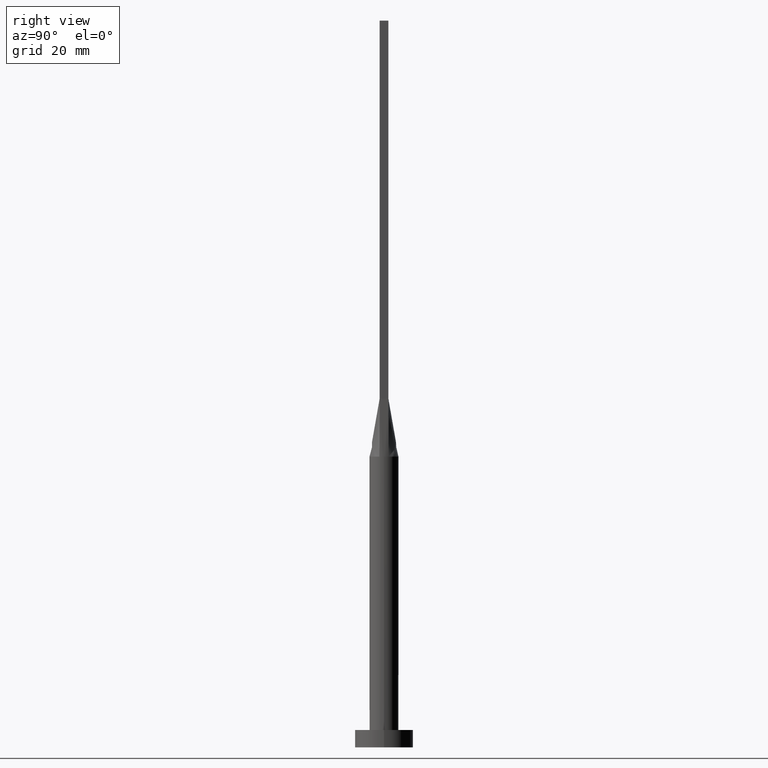
[diagram: clean part render]
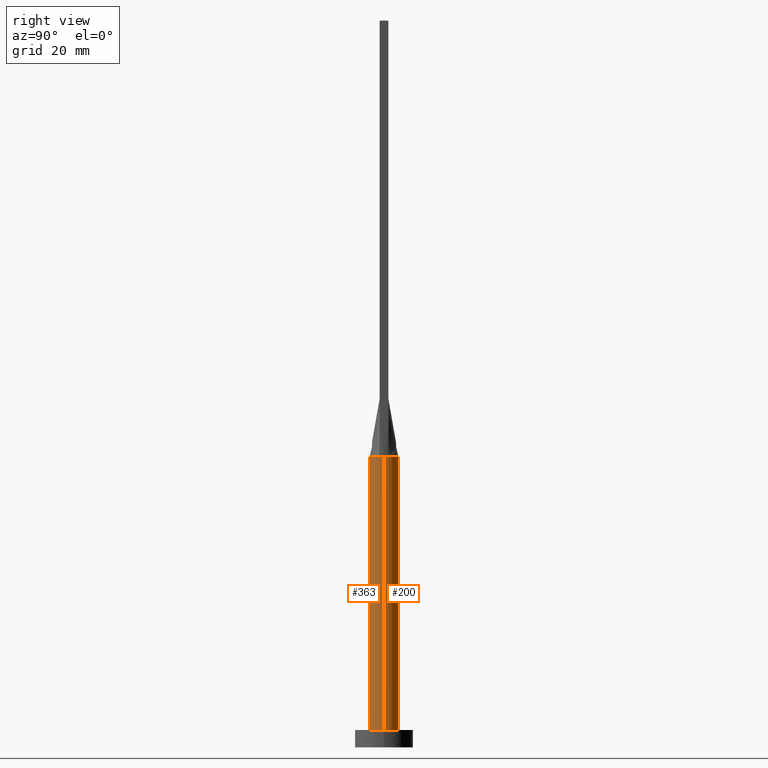
[diagram: same view with one multi-face feature highlighted, each face labeled with its STEP entity id]
A machine part, right view. The highlighted faces form ONE feature: a constant-radius fillet chain: 2 tangent blend faces with common blend radius 2.5 mm. The faces share edges in the B-rep.
Their STEP definitions:
[1] entity #363 (Cylinder):
#29 = CARTESIAN_POINT ( 'NONE',  ( 2.499999999999999556, 3.110810548879990207E-17, 50.00000000000000000 ) ) ;
#45 = ORIENTED_EDGE ( 'NONE', *, *, #485, .F. ) ;
#77 = DIRECTION ( 'NONE',  ( 1.000000000000000000, 0.000000000000000000, 0.000000000000000000 ) ) ;
#80 = EDGE_CURVE ( 'NONE', #159, #578, #181, .T. ) ;
#90 = EDGE_CURVE ( 'NONE', #519, #320, #391, .T. ) ;
#98 = ORIENTED_EDGE ( 'NONE', *, *, #80, .F. ) ;
#105 = ORIENTED_EDGE ( 'NONE', *, *, #90, .T. ) ;
#106 = CIRCLE ( 'NONE', #189, 2.500000000000000000 ) ;
#113 = DIRECTION ( 'NONE',  ( -0.000000000000000000, -0.000000000000000000, -1.000000000000000000 ) ) ;
#150 = DIRECTION ( 'NONE',  ( 0.000000000000000000, 0.000000000000000000, 1.000000000000000000 ) ) ;
#157 = DIRECTION ( 'NONE',  ( -0.000000000000000000, -0.000000000000000000, -1.000000000000000000 ) ) ;
#159 = VERTEX_POINT ( 'NONE', #495 ) ;
#181 = CIRCLE ( 'NONE', #560, 2.500000000000000000 ) ;
#189 = AXIS2_PLACEMENT_3D ( 'NONE', #484, #330, #77 ) ;
#203 = CARTESIAN_POINT ( 'NONE',  ( -2.500000000000000444, -1.570839010700814298E-16, 50.00000000000000000 ) ) ;
#212 = CARTESIAN_POINT ( 'NONE',  ( -2.371775648085652222, -0.7905922034696525325, 50.00000000000000000 ) ) ;
#219 = ORIENTED_EDGE ( 'NONE', *, *, #447, .F. ) ;
#232 = CARTESIAN_POINT ( 'NONE',  ( -2.500000000000000000, 0.000000000000000000, 3.000000000000000000 ) ) ;
#235 = CARTESIAN_POINT ( 'NONE',  ( 0.000000000000000000, 0.000000000000000000, 50.00000000000000000 ) ) ;
#241 = DIRECTION ( 'NONE',  ( -1.000000000000000000, 0.000000000000000000, 0.000000000000000000 ) ) ;
#244 = CYLINDRICAL_SURFACE ( 'NONE', #312, 2.500000000000000000 ) ;
#246 = LINE ( 'NONE', #581, #575 ) ;
#267 = AXIS2_PLACEMENT_3D ( 'NONE', #386, #500, #390 ) ;
#274 = CARTESIAN_POINT ( 'NONE',  ( -2.500000000000000000, 0.000000000000000000, 50.00000000000000000 ) ) ;
#283 = CIRCLE ( 'NONE', #267, 2.500000000000000000 ) ;
#284 = CARTESIAN_POINT ( 'NONE',  ( 2.500000000000000000, 3.061616997868383141E-16, 3.000000000000000000 ) ) ;
#309 = EDGE_CURVE ( 'NONE', #320, #513, #345, .T. ) ;
#312 = AXIS2_PLACEMENT_3D ( 'NONE', #530, #113, #241 ) ;
#318 = DIRECTION ( 'NONE',  ( 1.000000000000000000, 0.000000000000000000, 0.000000000000000000 ) ) ;
#320 = VERTEX_POINT ( 'NONE', #232 ) ;
#328 = DIRECTION ( 'NONE',  ( 0.000000000000000000, 0.000000000000000000, 1.000000000000000000 ) ) ;
#330 = DIRECTION ( 'NONE',  ( 0.000000000000000000, 0.000000000000000000, 1.000000000000000000 ) ) ;
#345 = CIRCLE ( 'NONE', #498, 2.500000000000000000 ) ;
#363 = ADVANCED_FACE ( 'NONE', ( #389 ), #244, .T. ) ;
#373 = EDGE_CURVE ( 'NONE', #519, #472, #106, .T. ) ;
#386 = CARTESIAN_POINT ( 'NONE',  ( 0.000000000000000000, 0.000000000000000000, 50.00000000000000000 ) ) ;
#389 = FACE_OUTER_BOUND ( 'NONE', #467, .T. ) ;
#390 = DIRECTION ( 'NONE',  ( 1.000000000000000000, 0.000000000000000000, 0.000000000000000000 ) ) ;
#391 = LINE ( 'NONE', #274, #507 ) ;
#431 = DIRECTION ( 'NONE',  ( -0.000000000000000000, -0.000000000000000000, -1.000000000000000000 ) ) ;
#447 = EDGE_CURVE ( 'NONE', #472, #159, #283, .T. ) ;
#467 = EDGE_LOOP ( 'NONE', ( #45, #98, #219, #579, #105, #542 ) ) ;
#472 = VERTEX_POINT ( 'NONE', #212 ) ;
#484 = CARTESIAN_POINT ( 'NONE',  ( 0.000000000000000000, 0.000000000000000000, 50.00000000000000000 ) ) ;
#485 = EDGE_CURVE ( 'NONE', #578, #513, #246, .T. ) ;
#490 = DIRECTION ( 'NONE',  ( 1.000000000000000000, -4.440892098500626162E-15, 0.000000000000000000 ) ) ;
#495 = CARTESIAN_POINT ( 'NONE',  ( 2.371798206859841329, -0.7905998626979697796, 50.00000000000000000 ) ) ;
#498 = AXIS2_PLACEMENT_3D ( 'NONE', #561, #150, #318 ) ;
#500 = DIRECTION ( 'NONE',  ( 0.000000000000000000, 0.000000000000000000, 1.000000000000000000 ) ) ;
#507 = VECTOR ( 'NONE', #431, 1000.000000000000000 ) ;
#513 = VERTEX_POINT ( 'NONE', #284 ) ;
#519 = VERTEX_POINT ( 'NONE', #203 ) ;
#530 = CARTESIAN_POINT ( 'NONE',  ( 0.000000000000000000, 0.000000000000000000, 50.00000000000000000 ) ) ;
#542 = ORIENTED_EDGE ( 'NONE', *, *, #309, .T. ) ;
#560 = AXIS2_PLACEMENT_3D ( 'NONE', #235, #328, #490 ) ;
#561 = CARTESIAN_POINT ( 'NONE',  ( 0.000000000000000000, 0.000000000000000000, 3.000000000000000000 ) ) ;
#575 = VECTOR ( 'NONE', #157, 1000.000000000000000 ) ;
#578 = VERTEX_POINT ( 'NONE', #29 ) ;
#579 = ORIENTED_EDGE ( 'NONE', *, *, #373, .F. ) ;
#581 = CARTESIAN_POINT ( 'NONE',  ( 2.500000000000000000, 3.061616997868383141E-16, 50.00000000000000000 ) ) ;
[2] entity #200 (Cylinder):
#17 = CARTESIAN_POINT ( 'NONE',  ( 0.3003163416900527238, 2.499999999999999556, 50.00000000000000711 ) ) ;
#18 = CARTESIAN_POINT ( 'NONE',  ( -2.218933079238281536, 1.174882007251999871, 50.00000000000000711 ) ) ;
#29 = CARTESIAN_POINT ( 'NONE',  ( 2.499999999999999556, 3.110810548879990207E-17, 50.00000000000000000 ) ) ;
#35 = ORIENTED_EDGE ( 'NONE', *, *, #485, .T. ) ;
#49 = VERTEX_POINT ( 'NONE', #143 ) ;
#56 = CARTESIAN_POINT ( 'NONE',  ( 1.145194483530141749, 2.241235424885160921, 50.00000000000000000 ) ) ;
#61 = CARTESIAN_POINT ( 'NONE',  ( -2.309208245126284975, 0.9780694150420951027, 50.00000000000000711 ) ) ;
#68 = B_SPLINE_CURVE_WITH_KNOTS ( 'NONE', 3,
 ( #279, #229, #112, #116, #413, #178, #56, #554, #17, #187, #184, #368, #475, #418, #310, #18, #61, #557 ),
 .UNSPECIFIED., .F., .F.,
 ( 4, 2, 2, 2, 2, 2, 2, 2, 4 ),
 ( 0.000000000000000000, 0.1250000000000000000, 0.2500000000000000000, 0.3750000000000000000, 0.5000000000000000000, 0.6250000000000000000, 0.7500000000000000000, 0.8750000000000000000, 1.000000000000000000 ),
 .UNSPECIFIED. ) ;
#82 = CIRCLE ( 'NONE', #407, 2.500000000000000000 ) ;
#90 = EDGE_CURVE ( 'NONE', #519, #320, #391, .T. ) ;
#99 = CARTESIAN_POINT ( 'NONE',  ( 0.000000000000000000, 0.000000000000000000, 50.00000000000000000 ) ) ;
#100 = DIRECTION ( 'NONE',  ( 0.000000000000000000, 0.000000000000000000, 1.000000000000000000 ) ) ;
#104 = DIRECTION ( 'NONE',  ( 0.000000000000000000, 0.000000000000000000, 1.000000000000000000 ) ) ;
#112 = CARTESIAN_POINT ( 'NONE',  ( 2.218933079238281980, 1.174882007252000315, 50.00000000000000711 ) ) ;
#115 = CIRCLE ( 'NONE', #335, 2.500000000000000000 ) ;
#116 = CARTESIAN_POINT ( 'NONE',  ( 1.964343640889990361, 1.563766543189047287, 49.99999999999998579 ) ) ;
#143 = CARTESIAN_POINT ( 'NONE',  ( -2.371795432964766359, 0.7905989074952441964, 50.00000000000000000 ) ) ;
#153 = CARTESIAN_POINT ( 'NONE',  ( 2.371772892450305648, 0.7905912578404317159, 50.00000000000000000 ) ) ;
#156 = EDGE_CURVE ( 'NONE', #578, #574, #82, .T. ) ;
#157 = DIRECTION ( 'NONE',  ( -0.000000000000000000, -0.000000000000000000, -1.000000000000000000 ) ) ;
#178 = CARTESIAN_POINT ( 'NONE',  ( 1.390086206340439112, 2.094828891646494995, 50.00000000000000711 ) ) ;
#184 = CARTESIAN_POINT ( 'NONE',  ( -0.6000386972366482663, 2.444291348568452094, 50.00000000000000000 ) ) ;
#187 = CARTESIAN_POINT ( 'NONE',  ( -0.3003163416900526128, 2.499999999999999112, 49.99999999999999289 ) ) ;
#198 = ORIENTED_EDGE ( 'NONE', *, *, #296, .T. ) ;
#200 = ADVANCED_FACE ( 'NONE', ( #362 ), #358, .T. ) ;
#203 = CARTESIAN_POINT ( 'NONE',  ( -2.500000000000000444, -1.570839010700814298E-16, 50.00000000000000000 ) ) ;
#227 = EDGE_CURVE ( 'NONE', #49, #519, #115, .T. ) ;
#229 = CARTESIAN_POINT ( 'NONE',  ( 2.309208245126284975, 0.9780694150420948807, 50.00000000000000711 ) ) ;
#230 = CIRCLE ( 'NONE', #468, 2.500000000000000000 ) ;
#232 = CARTESIAN_POINT ( 'NONE',  ( -2.500000000000000000, 0.000000000000000000, 3.000000000000000000 ) ) ;
#246 = LINE ( 'NONE', #581, #575 ) ;
#251 = CARTESIAN_POINT ( 'NONE',  ( 0.000000000000000000, 0.000000000000000000, 50.00000000000000000 ) ) ;
#274 = CARTESIAN_POINT ( 'NONE',  ( -2.500000000000000000, 0.000000000000000000, 50.00000000000000000 ) ) ;
#279 = CARTESIAN_POINT ( 'NONE',  ( 2.371772892450305648, 0.7905912578404317159, 50.00000000000000000 ) ) ;
#280 = DIRECTION ( 'NONE',  ( 1.000000000000000000, 0.000000000000000000, 0.000000000000000000 ) ) ;
#284 = CARTESIAN_POINT ( 'NONE',  ( 2.500000000000000000, 3.061616997868383141E-16, 3.000000000000000000 ) ) ;
#289 = DIRECTION ( 'NONE',  ( 0.000000000000000000, 0.000000000000000000, 1.000000000000000000 ) ) ;
#295 = ORIENTED_EDGE ( 'NONE', *, *, #227, .F. ) ;
#296 = EDGE_CURVE ( 'NONE', #513, #320, #230, .T. ) ;
#310 = CARTESIAN_POINT ( 'NONE',  ( -1.964343640889990805, 1.563766543189048175, 50.00000000000000711 ) ) ;
#320 = VERTEX_POINT ( 'NONE', #232 ) ;
#335 = AXIS2_PLACEMENT_3D ( 'NONE', #99, #100, #558 ) ;
#358 = CYLINDRICAL_SURFACE ( 'NONE', #477, 2.500000000000000000 ) ;
#362 = FACE_OUTER_BOUND ( 'NONE', #433, .T. ) ;
#368 = CARTESIAN_POINT ( 'NONE',  ( -1.145194483530141527, 2.241235424885160921, 49.99999999999999289 ) ) ;
#391 = LINE ( 'NONE', #274, #507 ) ;
#400 = ORIENTED_EDGE ( 'NONE', *, *, #90, .F. ) ;
#403 = DIRECTION ( 'NONE',  ( 1.000000000000000000, 0.000000000000000000, 0.000000000000000000 ) ) ;
#407 = AXIS2_PLACEMENT_3D ( 'NONE', #251, #289, #403 ) ;
#413 = CARTESIAN_POINT ( 'NONE',  ( 1.799471046981194977, 1.755719709239274007, 50.00000000000000711 ) ) ;
#418 = CARTESIAN_POINT ( 'NONE',  ( -1.799471046981195199, 1.755719709239274229, 50.00000000000000711 ) ) ;
#426 = CARTESIAN_POINT ( 'NONE',  ( 0.000000000000000000, 0.000000000000000000, 50.00000000000000000 ) ) ;
#431 = DIRECTION ( 'NONE',  ( -0.000000000000000000, -0.000000000000000000, -1.000000000000000000 ) ) ;
#433 = EDGE_LOOP ( 'NONE', ( #439, #35, #198, #400, #295, #442 ) ) ;
#439 = ORIENTED_EDGE ( 'NONE', *, *, #156, .F. ) ;
#442 = ORIENTED_EDGE ( 'NONE', *, *, #556, .F. ) ;
#468 = AXIS2_PLACEMENT_3D ( 'NONE', #562, #104, #280 ) ;
#471 = DIRECTION ( 'NONE',  ( -1.000000000000000000, 0.000000000000000000, 0.000000000000000000 ) ) ;
#475 = CARTESIAN_POINT ( 'NONE',  ( -1.390086206340438890, 2.094828891646495883, 50.00000000000001421 ) ) ;
#477 = AXIS2_PLACEMENT_3D ( 'NONE', #426, #518, #471 ) ;
#485 = EDGE_CURVE ( 'NONE', #578, #513, #246, .T. ) ;
#507 = VECTOR ( 'NONE', #431, 1000.000000000000000 ) ;
#513 = VERTEX_POINT ( 'NONE', #284 ) ;
#518 = DIRECTION ( 'NONE',  ( -0.000000000000000000, -0.000000000000000000, -1.000000000000000000 ) ) ;
#519 = VERTEX_POINT ( 'NONE', #203 ) ;
#554 = CARTESIAN_POINT ( 'NONE',  ( 0.6000386972366480443, 2.444291348568451649, 50.00000000000000711 ) ) ;
#556 = EDGE_CURVE ( 'NONE', #574, #49, #68, .T. ) ;
#557 = CARTESIAN_POINT ( 'NONE',  ( -2.371795432964766359, 0.7905989074952441964, 50.00000000000000000 ) ) ;
#558 = DIRECTION ( 'NONE',  ( 1.000000000000000000, 0.000000000000000000, 0.000000000000000000 ) ) ;
#562 = CARTESIAN_POINT ( 'NONE',  ( 0.000000000000000000, 0.000000000000000000, 3.000000000000000000 ) ) ;
#574 = VERTEX_POINT ( 'NONE', #153 ) ;
#575 = VECTOR ( 'NONE', #157, 1000.000000000000000 ) ;
#578 = VERTEX_POINT ( 'NONE', #29 ) ;
#581 = CARTESIAN_POINT ( 'NONE',  ( 2.500000000000000000, 3.061616997868383141E-16, 50.00000000000000000 ) ) ;